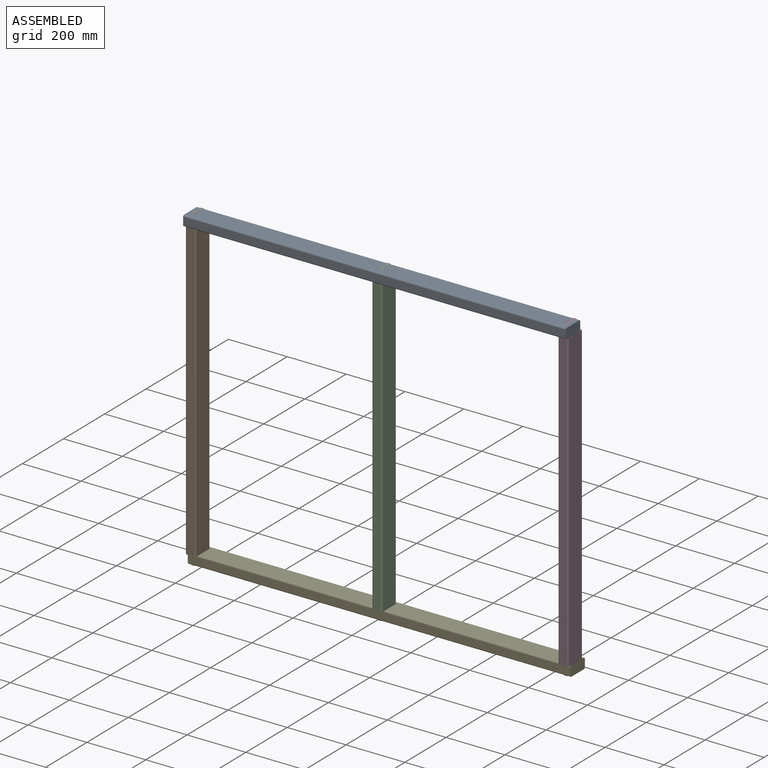
[diagram: assembled view]
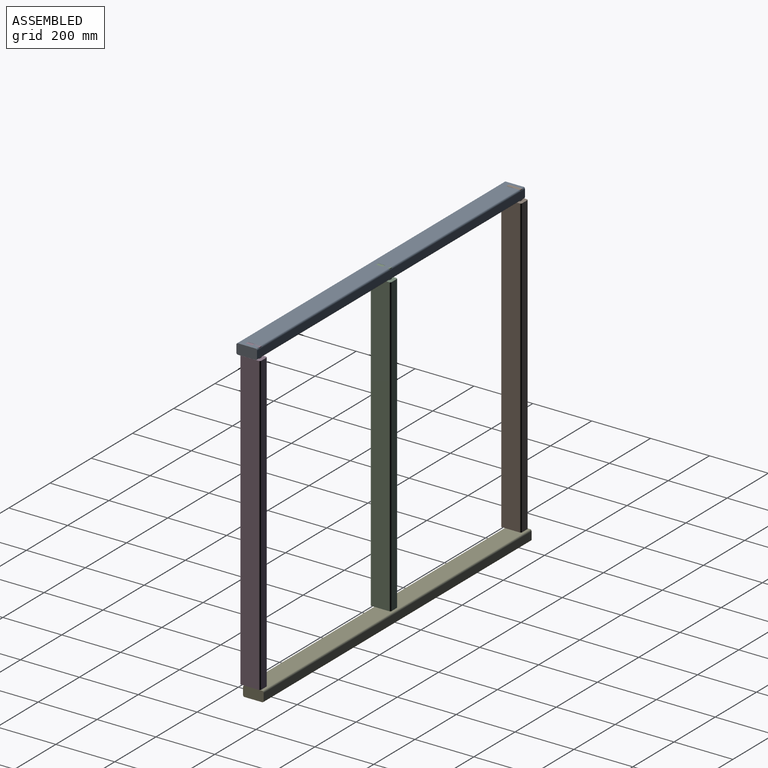
[diagram: assembled view, second angle]
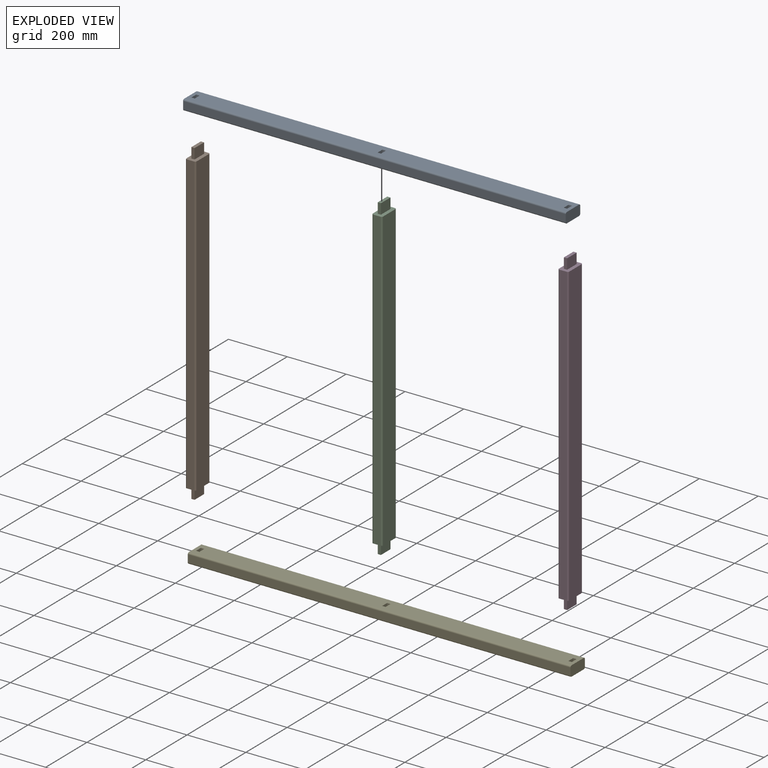
[diagram: exploded view]
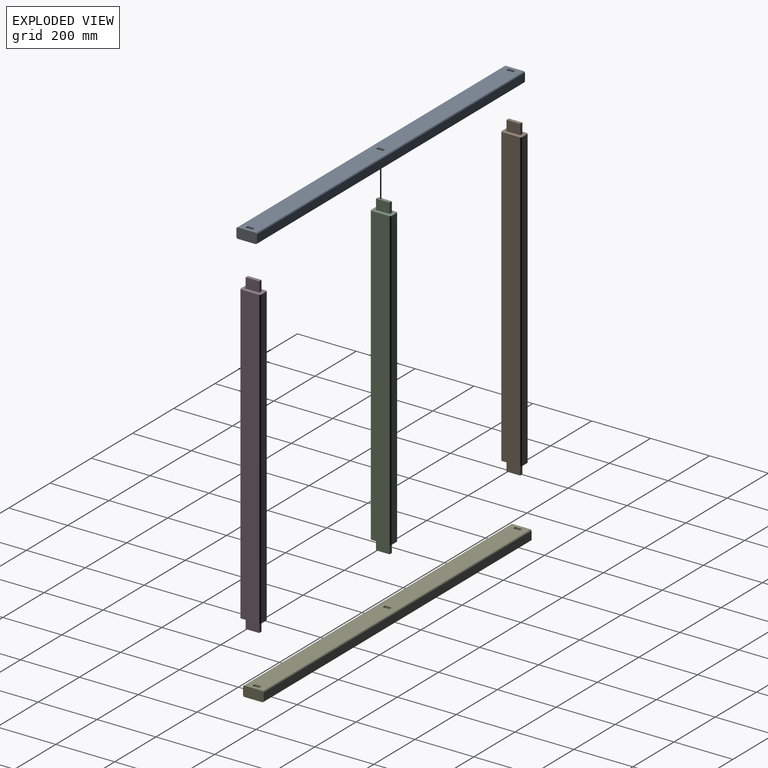
[diagram: exploded view, second angle]
ASSEMBLY  parts=5 mates=4
PART A: 22 faces, bbox 1300x70x35 mm
  f0: plane 1300x25mm, normal (0,1,0), area 32500mm2, adj f1,f15,f19,f21
  f1: plane 70x35mm, normal (-1,0,0), area 2428.5mm2, adj f0,f2,f16,f17,f18,f19,f20,f21
  f2: plane 1300x25mm, normal (0,-1,0), area 32500mm2, adj f1,f15,f18,f20
  f3: plane 35x23.33mm, normal (1,0,0), area 816.7mm2, adj f4,f12,f16,f17
  f4: plane 35x11.67mm, normal (0,-1,0), area 408.3mm2, adj f3,f5,f16,f17
  f5: plane 35x23.33mm, normal (-1,0,0), area 816.7mm2, adj f4,f12,f16,f17
  f6: plane 35x11.67mm, normal (0,1,0), area 408.3mm2, adj f7,f13,f16,f17
  f7: plane 35x23.33mm, normal (1,0,0), area 816.7mm2, adj f6,f8,f16,f17
  f8: plane 35x11.67mm, normal (0,-1,0), area 408.3mm2, adj f7,f13,f16,f17
  f9: plane 35x11.67mm, normal (0,1,0), area 408.3mm2, adj f10,f14,f16,f17
  f10: plane 35x23.33mm, normal (1,0,0), area 816.7mm2, adj f9,f11,f16,f17
  f11: plane 35x11.67mm, normal (0,-1,0), area 408.3mm2, adj f10,f14,f16,f17
  f12: plane 35x11.67mm, normal (0,1,0), area 408.3mm2, adj f3,f5,f16,f17
  f13: plane 35x23.33mm, normal (-1,0,0), area 816.7mm2, adj f6,f8,f16,f17
  f14: plane 35x23.33mm, normal (-1,0,0), area 816.7mm2, adj f9,f11,f16,f17
  f15: plane 70x35mm, normal (1,0,0), area 2428.5mm2, adj f0,f2,f16,f17,f18,f19,f20,f21
  f16: plane 1300x60mm, normal (0,0,1), area 77183.3mm2, adj f1,f3,f4,f5,f6,f7,f8,f9
  f17: plane 1300x60mm, normal (0,0,-1), area 77183.3mm2, adj f1,f3,f4,f5,f6,f7,f8,f9
  f18: cylinder r=5mm len=1300mm, axis (1,0,0), area 10210.2mm2, adj f1,f2,f15,f17
  f19: cylinder r=5mm len=1300mm, axis (-1,0,0), area 10210.2mm2, adj f0,f1,f15,f17
  f20: cylinder r=5mm len=1300mm, axis (-1,0,0), area 10210.2mm2, adj f1,f2,f15,f16
  f21: cylinder r=5mm len=1300mm, axis (1,0,0), area 10210.2mm2, adj f0,f1,f15,f16
PART B: 20 faces, bbox 70x35x1080 mm
  f0: plane 1010x60mm, normal (0,1,0), area 60600mm2, adj f4,f7,f12,f18
  f1: plane 1010x25mm, normal (-1,0,0), area 25250mm2, adj f4,f5,f12,f18
  f2: plane 1010x60mm, normal (0,-1,0), area 60600mm2, adj f5,f6,f12,f18
  f3: plane 1010x25mm, normal (1,0,0), area 25250mm2, adj f6,f7,f12,f18
  f4: cylinder r=5mm len=1010mm, axis (0,0,-1), area 7932.5mm2, adj f0,f1,f12,f18
  f5: cylinder r=5mm len=1010mm, axis (0,0,-1), area 7932.5mm2, adj f1,f2,f12,f18
  f6: cylinder r=5mm len=1010mm, axis (0,0,-1), area 7932.5mm2, adj f2,f3,f12,f18
  f7: cylinder r=5mm len=1010mm, axis (0,0,-1), area 7932.5mm2, adj f0,f3,f12,f18
  f8: plane 35x11mm, normal (1,0,0), area 385mm2, adj f9,f11,f12,f13
  f9: plane 46x35mm, normal (0,-1,0), area 1610mm2, adj f8,f10,f12,f13
  f10: plane 35x11mm, normal (-1,0,0), area 385mm2, adj f9,f11,f12,f13
  f11: plane 46x35mm, normal (0,1,0), area 1610mm2, adj f8,f10,f12,f13
  f12: plane 70x35mm, normal (0,0,-1), area 1922.5mm2, adj f0,f1,f2,f3,f4,f5,f6,f7
  f13: plane 46x11mm, normal (0,0,-1), area 506mm2, adj f8,f9,f10,f11
  f14: plane 35x11mm, normal (-1,0,0), area 385mm2, adj f15,f17,f18,f19
  f15: plane 46x35mm, normal (0,1,0), area 1610mm2, adj f14,f16,f18,f19
  f16: plane 35x11mm, normal (1,0,0), area 385mm2, adj f15,f17,f18,f19
  f17: plane 46x35mm, normal (0,-1,0), area 1610mm2, adj f14,f16,f18,f19
  f18: plane 70x35mm, normal (0,0,1), area 1922.5mm2, adj f0,f1,f2,f3,f4,f5,f6,f7
  f19: plane 46x11mm, normal (0,0,1), area 506mm2, adj f14,f15,f16,f17
PART C: same geometry as B
PART D: same geometry as B
PART E: same geometry as A
PLACE A t=(0,-22.67,1045)mm
PLACE B rot(axis=(0,0,-1),90deg) t=(-634.26,-185.19,0)mm
PLACE C rot(axis=(0,0,1),90deg) t=(77.82,-11.9,0)mm
PLACE D rot(axis=(0,0,1),90deg) t=(710.32,-11.9,0)mm
PLACE E at identity
MATE fastened D.f13 <-> E.f17  axis (0,0,-1) through (676.37,-75.54,0)mm
MATE fastened C.f13 <-> E.f17  axis (0,0,1) through (43.87,-75.54,0)mm
MATE fastened B.f13 <-> E.f17  axis (0,0,1) through (-600.3,-75.54,0)mm
MATE fastened A.f16 <-> B.f19  axis (0,0,1) through (-600.3,-121.54,1080)mm
